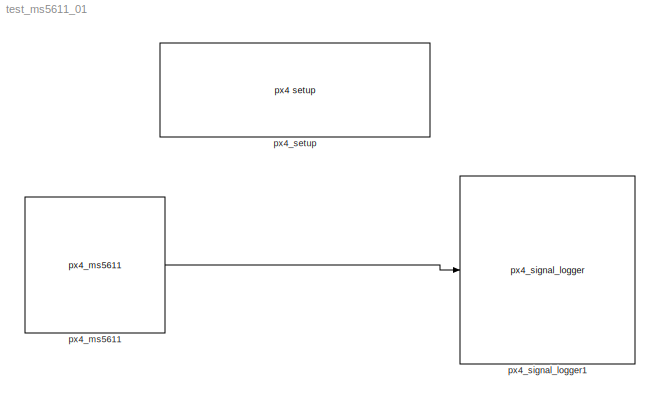
MODEL test_ms5611_01
KIND model
CONFIG InitFcn = px4_ap1_mdl_callback('check_model');
BLOCK [Reference] px4_ms5611  REF=px4_ap1_ms5611_lib/px4_ms5611
  Description = Setup for PX4 native software
  Ports = [0, 1]
  SID = 1
  SourceBlock = px4_ap1_ms5611_lib/px4_ms5611
  SourceType = PX4_MS5611
BLOCK [Reference] px4_setup  REF=px4_ap1_px4setup_lib/px4 setup
  Ports = []
  SID = 2
  SampleTimeValue = 1
  SourceBlock = px4_ap1_px4setup_lib/px4 setup
  SourceType = PX4_Target_Setup
  cbBuild = on
  cbPort = COM3
  cbUpload = off
  cpuLoad = off
  debugmode = off
BLOCK [Reference] px4_signal_logger1  REF=px4_ap1_signal_output_lib/px4_signal_logger
  Description = Setup for PX4 native software
  Ports = [1]
  SID = 3
  SourceBlock = px4_ap1_signal_output_lib/px4_signal_logger
  sampleTime = 1000
  sigCnt = 1
LINE px4_ms5611:1 -> px4_signal_logger1:1
